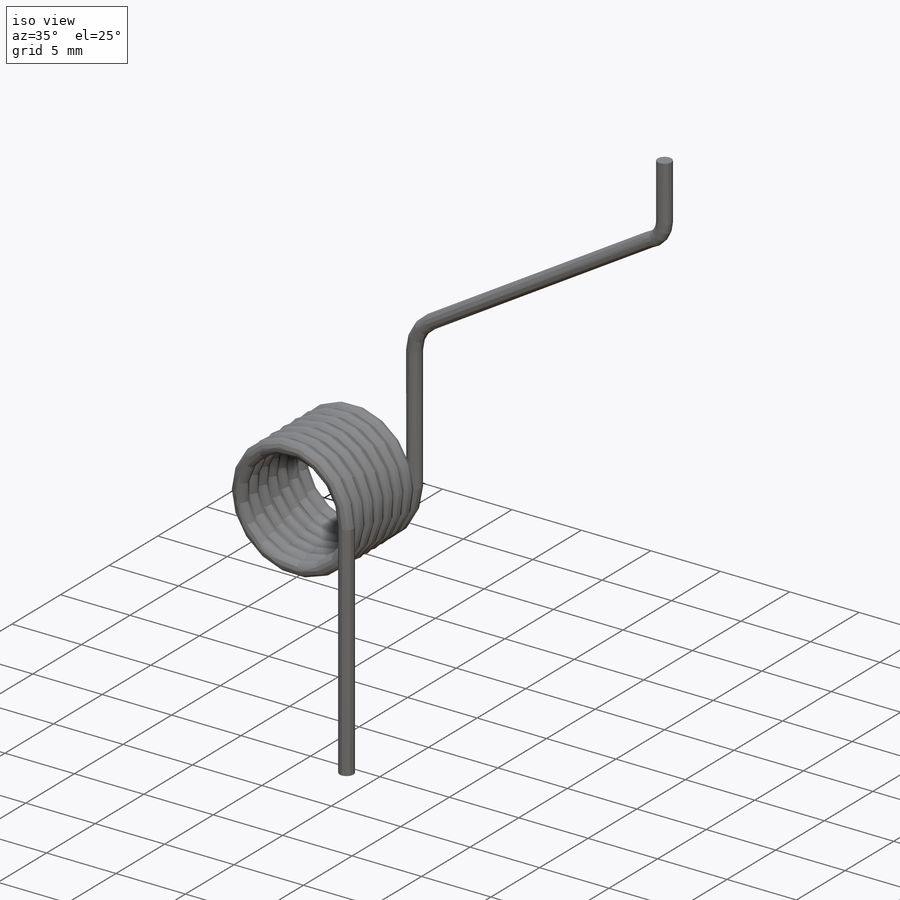
[diagram: iso view]
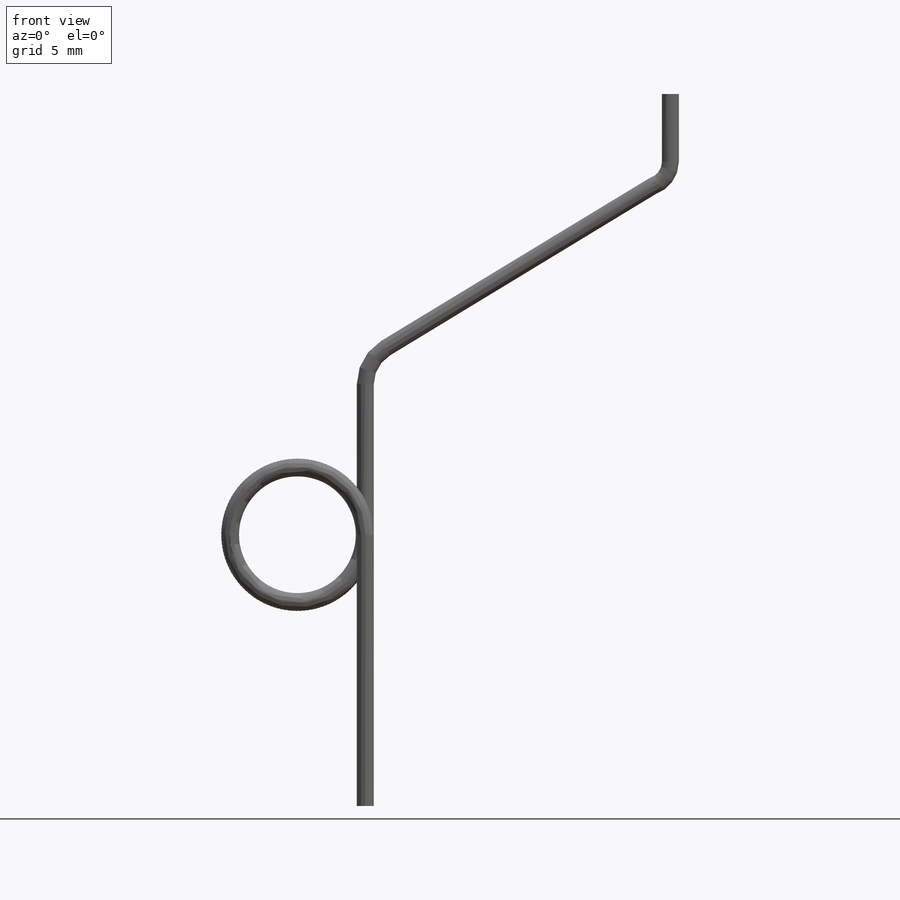
[diagram: front view]
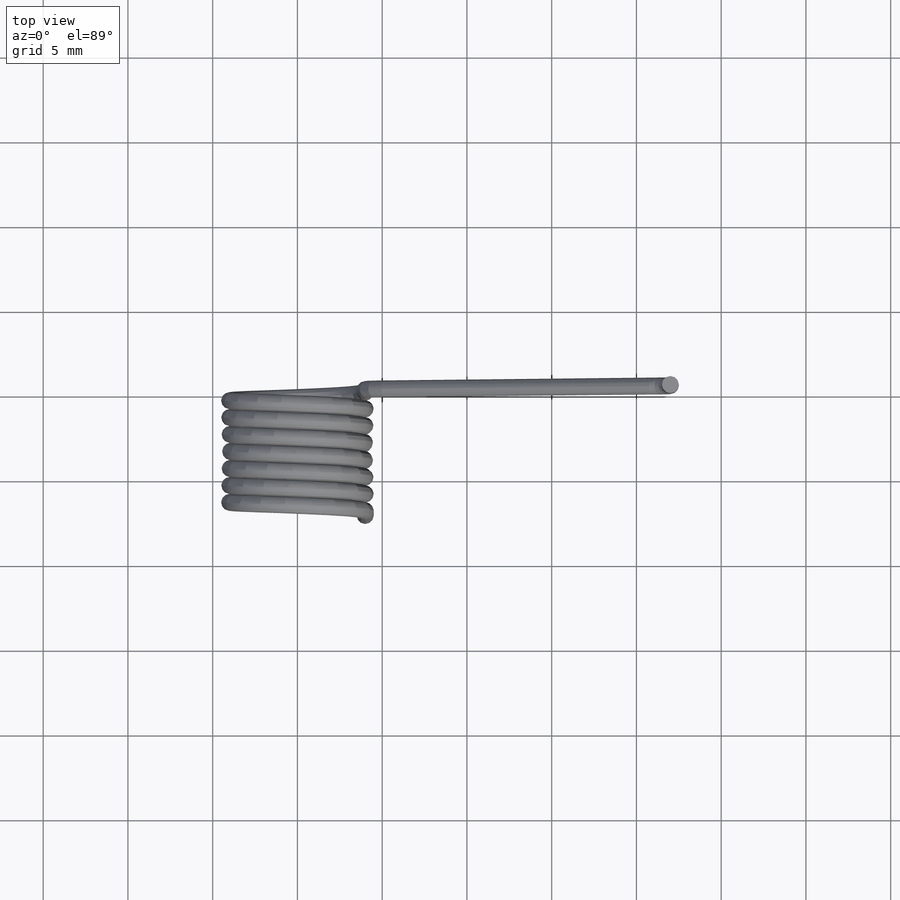
[diagram: top view]
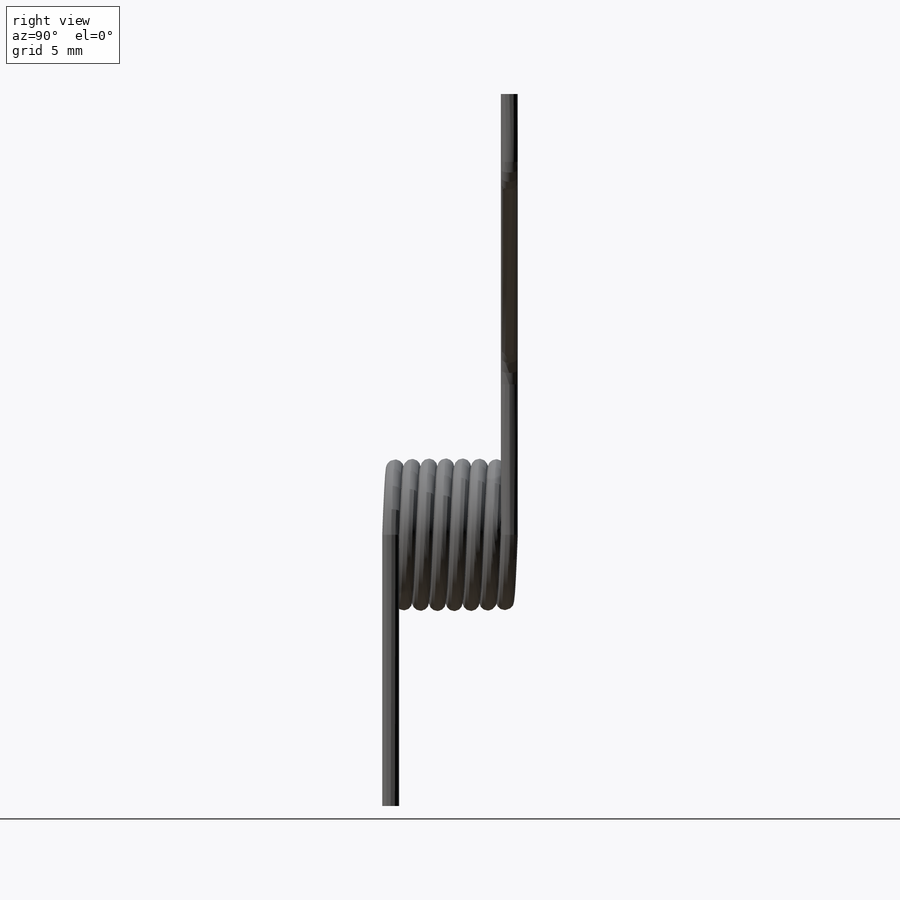
[diagram: right view]
SOLIDWORKS PART (.sldprt)
format: sldprt  version: not decoded by parser v0  size: 251,904 bytes
history: native  units: mm
features: sketch x6, plane x5, sweep x3, material x1, helix x1 (+10 scaffold rows collapsed)
feature tree (26):
  scaffold x10  (default folders/planes/origin — collapsed)
  material  "Matériau <non spécifié>"
  plane  "Face"
  plane  "Dessus"
  plane  "Droite"
  sketch  "Esquisse1"  dims[D1=8.0mm]
  helix  "Hélice/Spirale1"  Pitch=7mm
  sketch  "Esquisse2"  dims[D1=1.0mm D2=4.1mm D3=~1.859945mm]
  plane  "Plan1"  Offset=4mm
  sweep  "Balayage3"
  sketch  "Esquisse6"  dims[D1=1.0mm]
  sketch  "Esquisse3"  dims[c1.D4=2.0mm c1.D1=12.0mm c1.D2=~2.461232mm c2.D2=135.0deg c2.D3=2.0mm c2.D1=16.0mm c3.D2=16.0mm c3.D3=16.0mm c3.D1=16.0mm c4.D2=16.0mm]
  sweep  "Balayage4"
  plane  "Plan2"  Offset=4mm
  sketch  "Esquisse8"  dims[D1=1.0mm]
  sketch  "Esquisse9"  dims[c1.D5=3.0mm c1.D9=2.0mm c1.D4=2.0mm c1.D1=10.0mm c1.D2=10.0mm c1.D3=20.0mm c2.D4=5.0mm c2.D3=20.0mm c2.D1=10.0mm c2.D2=10.0mm c3.D1=10.0mm c3.D6=5.0mm c3.D7=10.0mm c3.D8=20.0mm c3.D4=~2.703307mm c4.D7=10.0mm c4.D10=~16.246065mm c5.D7=~18.004131mm c5.D1=18.0mm c5.D2=12.0mm c5.D3=10.0mm c5.D5=4.0mm c5.D6=~5.462446mm c6.D7=~21.169421mm c6.D6=~5.462446mm]
  sweep  "Balayage5"
decode coverage: 7 of 10 modeling features carry decoded parameters
note: ~ marks probable driven/reference dimensions
note: suppression state not decoded; provenance and decode notes live in map.json
